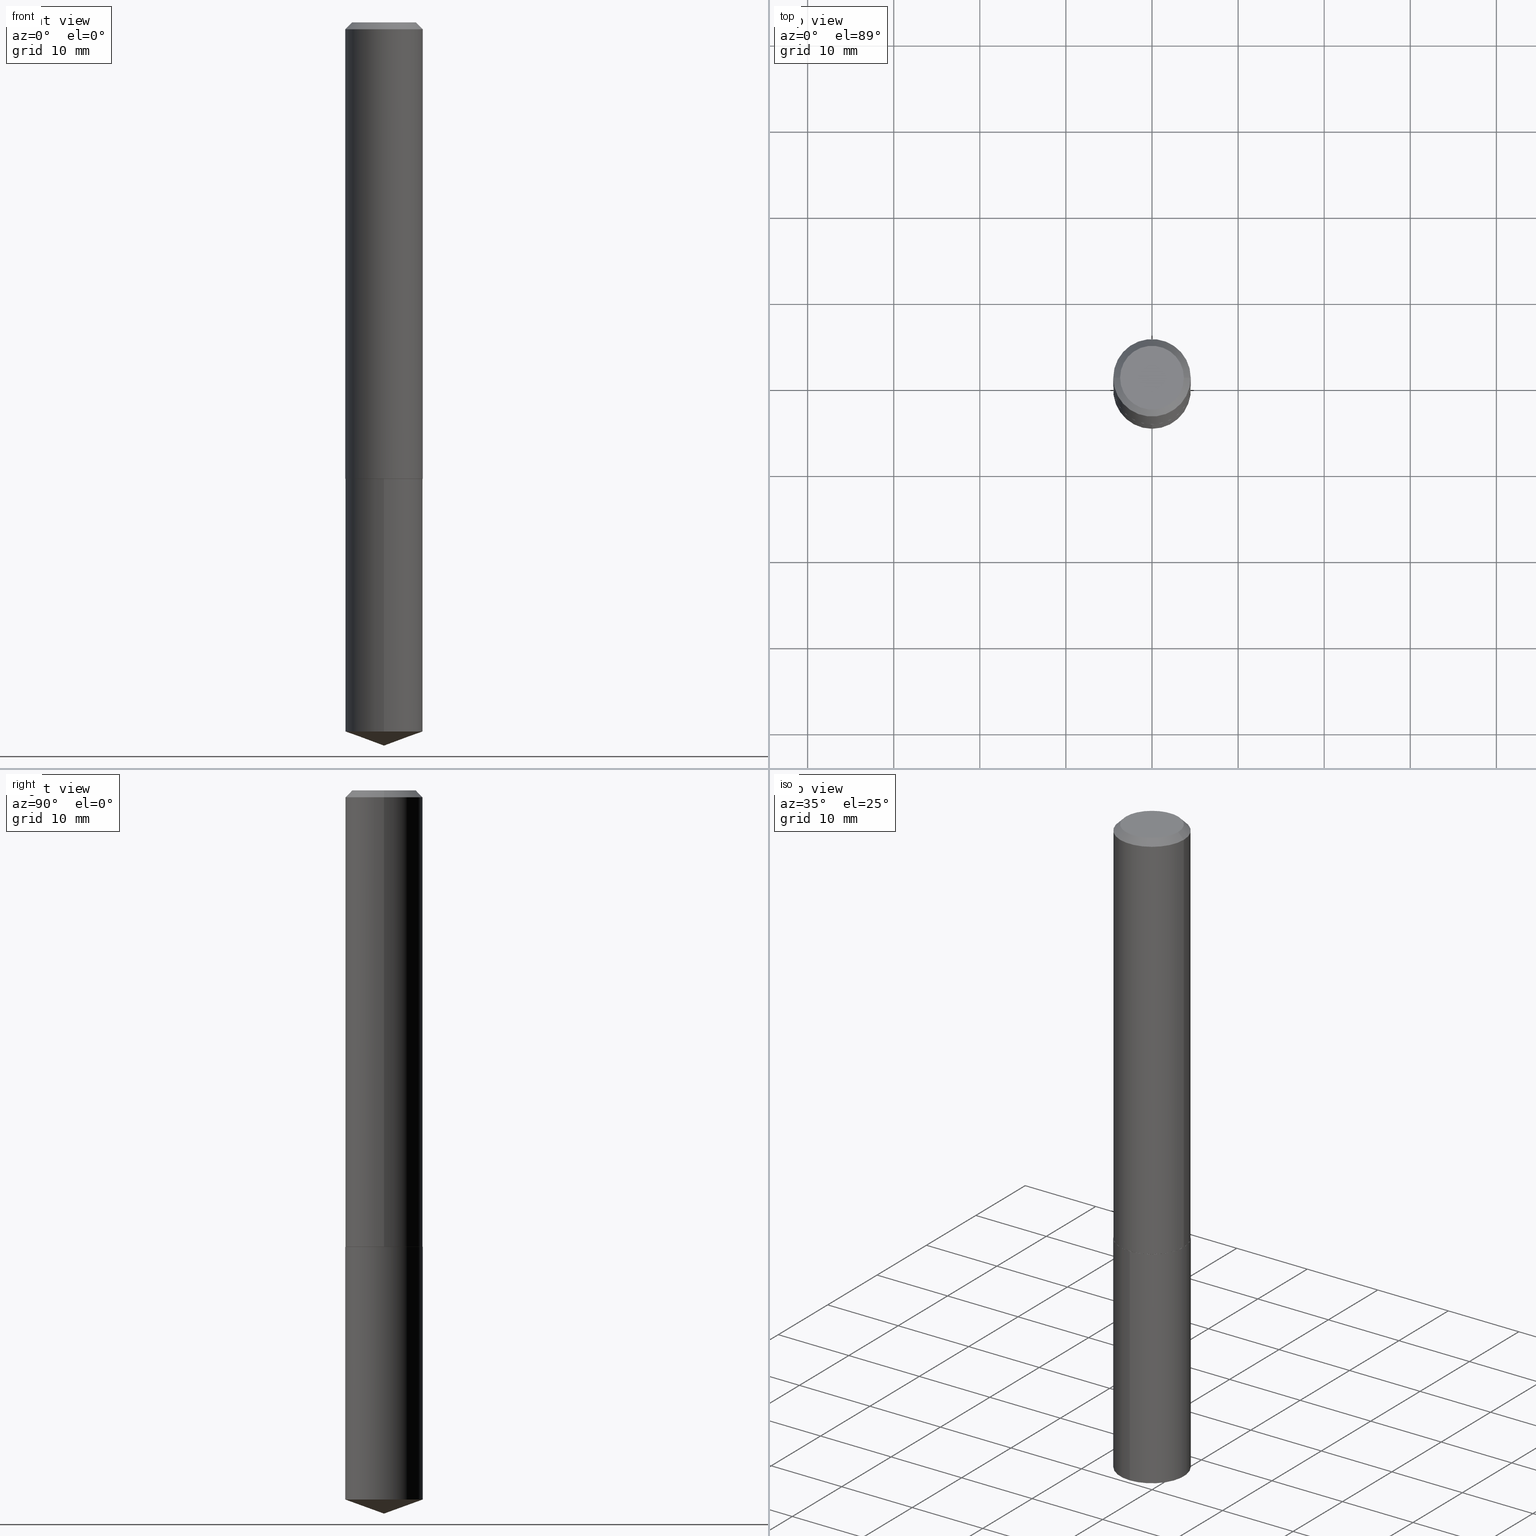
[diagram: canonical four-view strip — front | top / right | iso, engineering-drawing reading convention]
A machine part, canonical four-view strip (front | top / right | iso — engineering-drawing reading convention). The complete STEP part file that produces these views, byte-faithful:
ISO-10303-21;
HEADER;
FILE_DESCRIPTION (( 'STEP AP203' ),
    '1' );
FILE_NAME ('66031.STEP',
    '2024-04-23T12:32:38',
    ( '' ),
    ( '' ),
    'SwSTEP 2.0',
    'SolidWorks 2023',
    '' );
FILE_SCHEMA (( 'CONFIG_CONTROL_DESIGN' ));
ENDSEC;

DATA;
#1 = DIRECTION ( 'NONE',  ( 1.000000000000000000, -6.982962677686266711E-15, 4.876176775795935793E-29 ) ) ;
#2 = DATE_AND_TIME ( #208, #371 ) ;
#3 = CALENDAR_DATE ( 2024, 23, 4 ) ;
#4 = DIRECTION ( 'NONE',  ( 1.000000000000000000, -6.982962677686263555E-15, 0.000000000000000000 ) ) ;
#5 = EDGE_CURVE ( 'NONE', #71, #315, #258, .T. ) ;
#6 = DATE_TIME_ROLE ( 'classification_date' ) ;
#7 = PERSON_AND_ORGANIZATION ( #38, #155 ) ;
#8 = LOCAL_TIME ( 8, 32, 38.00000000000000000, #115 ) ;
#9 = ORIENTED_EDGE ( 'NONE', *, *, #111, .T. ) ;
#10 = ORIENTED_EDGE ( 'NONE', *, *, #361, .F. ) ;
#11 = ORIENTED_EDGE ( 'NONE', *, *, #26, .T. ) ;
#12 = DIRECTION ( 'NONE',  ( -2.445468806185136597E-29, 3.491481338843145583E-15, 1.000000000000000000 ) ) ;
#13 = EDGE_CURVE ( 'NONE', #170, #165, #106, .T. ) ;
#14 = CIRCLE ( 'NONE', #356, 0.1766500000000002790 ) ;
#15 = ORIENTED_EDGE ( 'NONE', *, *, #361, .T. ) ;
#16 = AXIS2_PLACEMENT_3D ( 'NONE', #212, #368, #117 ) ;
#17 = ORIENTED_EDGE ( 'NONE', *, *, #265, .T. ) ;
#18 = VERTEX_POINT ( 'NONE', #256 ) ;
#19 = AXIS2_PLACEMENT_3D ( 'NONE', #48, #233, #172 ) ;
#20 = CARTESIAN_POINT ( 'NONE',  ( -2.949913012720688878E-47, 4.211693974208522336E-33, 1.206277097160143859E-18 ) ) ;
#21 = DIRECTION ( 'NONE',  ( 0.7071067811865452413, -7.319954787623248157E-15, -0.7071067811865497932 ) ) ;
#22 = FACE_OUTER_BOUND ( 'NONE', #157, .T. ) ;
#23 = AXIS2_PLACEMENT_3D ( 'NONE', #30, #177, #238 ) ;
#24 = DIRECTION ( 'NONE',  ( 0.7071067811869580222, -2.468850131086556747E-15, 0.7071067811861370123 ) ) ;
#25 = FACE_OUTER_BOUND ( 'NONE', #43, .T. ) ;
#26 = EDGE_CURVE ( 'NONE', #312, #189, #273, .T. ) ;
#27 = APPROVAL_DATE_TIME ( #2, #61 ) ;
#28 = DIRECTION ( 'NONE',  ( -6.982962677686266711E-15, -1.000000000000000000, 3.475157955500737963E-15 ) ) ;
#29 = DATE_TIME_ROLE ( 'creation_date' ) ;
#30 = CARTESIAN_POINT ( 'NONE',  ( 5.102715210985906276E-29, -7.285324961630107416E-15, -2.086600000000000232 ) ) ;
#31 = CARTESIAN_POINT ( 'NONE',  ( 5.101492476582815716E-29, -7.283579220960688279E-15, -2.086100000000000954 ) ) ;
#32 = ORIENTED_EDGE ( 'NONE', *, *, #384, .T. ) ;
#33 = PERSON_AND_ORGANIZATION_ROLE ( 'design_supplier' ) ;
#34 = CIRCLE ( 'NONE', #280, 0.1459000000000000019 ) ;
#35 = LOCAL_TIME ( 8, 32, 38.00000000000000000, #328 ) ;
#36 = CYLINDRICAL_SURFACE ( 'NONE', #184, 0.1771500000000001129 ) ;
#37 = SECURITY_CLASSIFICATION_LEVEL ( 'unclassified' ) ;
#38 = PERSON ( 'UNSPECIFIED', 'UNSPECIFIED', 'UNSPECIFIED', ('UNSPECIFIED'), ('UNSPECIFIED'), ('UNSPECIFIED') ) ;
#39 = CARTESIAN_POINT ( 'NONE',  ( 5.101492476582815716E-29, -7.283579220960688279E-15, -2.086100000000000954 ) ) ;
#40 = EDGE_CURVE ( 'NONE', #222, #125, #364, .T. ) ;
#41 = EDGE_CURVE ( 'NONE', #315, #71, #121, .T. ) ;
#42 = CONICAL_SURFACE ( 'NONE', #112, 108.1684023407329107, 1.221730476396029941 ) ;
#43 = EDGE_LOOP ( 'NONE', ( #374, #346 ) ) ;
#44 = VERTEX_POINT ( 'NONE', #255 ) ;
#45 = ORIENTED_EDGE ( 'NONE', *, *, #242, .T. ) ;
#46 = APPLICATION_CONTEXT ( 'configuration controlled 3d designs of mechanical parts and assemblies' ) ;
#47 = ORIENTED_EDGE ( 'NONE', *, *, #283, .T. ) ;
#48 = CARTESIAN_POINT ( 'NONE',  ( -8.820242409055716223E-28, 1.258966992003663468E-13, 36.06297874015748306 ) ) ;
#49 = VECTOR ( 'NONE', #24, 39.37007874015748143 ) ;
#50 = EDGE_LOOP ( 'NONE', ( #126, #379, #45, #341 ) ) ;
#51 = DIRECTION ( 'NONE',  ( -2.445468806185136597E-29, 3.491481338843145583E-15, 1.000000000000000000 ) ) ;
#52 = DIRECTION ( 'NONE',  ( 2.445468806185136597E-29, -3.491481338843145583E-15, -1.000000000000000000 ) ) ;
#53 = LINE ( 'NONE', #108, #340 ) ;
#54 = FACE_OUTER_BOUND ( 'NONE', #186, .T. ) ;
#55 = CLOSED_SHELL ( 'NONE', ( #333, #325, #107, #286, #307, #293, #187, #160 ) ) ;
#56 = ORIENTED_EDGE ( 'NONE', *, *, #5, .T. ) ;
#57 = CARTESIAN_POINT ( 'NONE',  ( 0.1771500000000002240, -8.520611059312812251E-15, -2.086100000000000954 ) ) ;
#58 = EDGE_CURVE ( 'NONE', #222, #71, #53, .T. ) ;
#59 = DIRECTION ( 'NONE',  ( -0.7071067811865452413, 2.468850131082233000E-15, -0.7071067811865497932 ) ) ;
#60 = CARTESIAN_POINT ( 'NONE',  ( -0.1771500000000002240, -6.024852764561670589E-15, -2.086100000000000954 ) ) ;
#61 = APPROVAL ( #240, 'UNSPECIFIED' ) ;
#62 = CIRCLE ( 'NONE', #290, 0.1771500000000002240 ) ;
#63 = COORDINATED_UNIVERSAL_TIME_OFFSET ( 5, 0, .BEHIND. ) ;
#64 = APPROVAL_ROLE ( '' ) ;
#65 = LINE ( 'NONE', #304, #244 ) ;
#66 = COORDINATED_UNIVERSAL_TIME_OFFSET ( 5, 0, .BEHIND. ) ;
#67 = DATE_AND_TIME ( #306, #35 ) ;
#68 = SHAPE_DEFINITION_REPRESENTATION ( #138, #188 ) ;
#69 = PRODUCT ( '66031', '66031', '', ( #210 ) ) ;
#70 = CONICAL_SURFACE ( 'NONE', #206, 0.1771500000000002240, 0.7853981633980288146 ) ;
#71 = VERTEX_POINT ( 'NONE', #295 ) ;
#72 = ORIENTED_EDGE ( 'NONE', *, *, #283, .F. ) ;
#73 = ORIENTED_EDGE ( 'NONE', *, *, #83, .T. ) ;
#74 = AXIS2_PLACEMENT_3D ( 'NONE', #284, #12, #257 ) ;
#75 = ORIENTED_EDGE ( 'NONE', *, *, #111, .F. ) ;
#76 = CARTESIAN_POINT ( 'NONE',  ( 7.930082120451756435E-29, -1.132105601428266761E-14, -3.242622672999742495 ) ) ;
#77 = ADVANCED_FACE ( 'NONE', ( #143 ), #270, .F. ) ;
#78 = CARTESIAN_POINT ( 'NONE',  ( 5.102715210985907397E-29, -7.285324961630108994E-15, -2.086600000000000676 ) ) ;
#79 = CARTESIAN_POINT ( 'NONE',  ( 0.000000000000000000, 0.000000000000000000, 0.000000000000000000 ) ) ;
#80 = ORIENTED_EDGE ( 'NONE', *, *, #214, .T. ) ;
#81 = LOCAL_TIME ( 8, 32, 38.00000000000000000, #363 ) ;
#82 = DIRECTION ( 'NONE',  ( 1.000000000000000000, -6.982962677686263555E-15, 0.000000000000000000 ) ) ;
#83 = EDGE_CURVE ( 'NONE', #18, #44, #14, .T. ) ;
#84 = CYLINDRICAL_SURFACE ( 'NONE', #86, 0.1771500000000000019 ) ;
#85 = DIRECTION ( 'NONE',  ( -2.445771156139322232E-29, 3.491048356500061313E-15, 1.000000000000000000 ) ) ;
#86 = AXIS2_PLACEMENT_3D ( 'NONE', #327, #101, #200 ) ;
#87 = CONICAL_SURFACE ( 'NONE', #219, 0.1771500000000002240, 0.7853981633980288146 ) ;
#88 = CALENDAR_DATE ( 2024, 23, 4 ) ;
#89 = APPROVAL_DATE_TIME ( #120, #309 ) ;
#90 = APPLICATION_PROTOCOL_DEFINITION ( 'international standard', 'config_control_design', 1994, #46 ) ;
#91 = AXIS2_PLACEMENT_3D ( 'NONE', #127, #51, #185 ) ;
#92 = CC_DESIGN_APPROVAL ( #61, ( #254 ) ) ;
#93 = ORIENTED_EDGE ( 'NONE', *, *, #265, .F. ) ;
#94 = EDGE_LOOP ( 'NONE', ( #250, #159 ) ) ;
#95 = AXIS2_PLACEMENT_3D ( 'NONE', #78, #264, #359 ) ;
#96 = CIRCLE ( 'NONE', #23, 0.1766500000000002790 ) ;
#97 = VERTEX_POINT ( 'NONE', #263 ) ;
#98 = EDGE_LOOP ( 'NONE', ( #314, #347, #56, #99 ) ) ;
#99 = ORIENTED_EDGE ( 'NONE', *, *, #242, .F. ) ;
#100 = VERTEX_POINT ( 'NONE', #104 ) ;
#101 = DIRECTION ( 'NONE',  ( -2.445771156139322232E-29, 3.491048356500061313E-15, 1.000000000000000000 ) ) ;
#102 = DIRECTION ( 'NONE',  ( 2.445771156139321391E-29, -3.491048356500061707E-15, -1.000000000000000000 ) ) ;
#103 = CARTESIAN_POINT ( 'NONE',  ( -1.237031838352071118E-15, -0.1771500000000073016, -2.086600000000000232 ) ) ;
#104 = CARTESIAN_POINT ( 'NONE',  ( 8.088409790468352697E-29, -1.154524601978135254E-14, -3.307100000000000151 ) ) ;
#105 = DIRECTION ( 'NONE',  ( -1.000000000000000000, 6.982962677686266711E-15, 0.000000000000000000 ) ) ;
#106 = CIRCLE ( 'NONE', #230, 0.1771500000000000019 ) ;
#107 = ADVANCED_FACE ( 'NONE', ( #369 ), #70, .T. ) ;
#108 = CARTESIAN_POINT ( 'NONE',  ( 0.1771500000000000019, -1.324446012144076001E-15, -0.03125000000000021511 ) ) ;
#109 = LINE ( 'NONE', #236, #154 ) ;
#110 = PERSON_AND_ORGANIZATION ( #38, #155 ) ;
#111 = EDGE_CURVE ( 'NONE', #18, #249, #152, .T. ) ;
#112 = AXIS2_PLACEMENT_3D ( 'NONE', #229, #85, #28 ) ;
#113 = CC_DESIGN_APPROVAL ( #272, ( #365 ) ) ;
#114 =( NAMED_UNIT ( * ) SI_UNIT ( $, .STERADIAN. ) SOLID_ANGLE_UNIT ( ) );
#115 = COORDINATED_UNIVERSAL_TIME_OFFSET ( 5, 0, .BEHIND. ) ;
#116 = ORIENTED_EDGE ( 'NONE', *, *, #214, .F. ) ;
#117 = DIRECTION ( 'NONE',  ( 1.000000000000000000, 0.000000000000000000, 0.000000000000000000 ) ) ;
#118 = DIRECTION ( 'NONE',  ( -2.445468806185136597E-29, 3.491481338843145583E-15, 1.000000000000000000 ) ) ;
#119 = ORIENTED_EDGE ( 'NONE', *, *, #164, .F. ) ;
#120 = DATE_AND_TIME ( #332, #174 ) ;
#121 = CIRCLE ( 'NONE', #74, 0.1771500000000000019 ) ;
#122 = VECTOR ( 'NONE', #319, 39.37007874015747433 ) ;
#123 = DIRECTION ( 'NONE',  ( -2.445468806185136597E-29, 3.491481338843145583E-15, 1.000000000000000000 ) ) ;
#124 = EDGE_LOOP ( 'NONE', ( #75, #73, #190, #288 ) ) ;
#125 = VERTEX_POINT ( 'NONE', #311 ) ;
#126 = ORIENTED_EDGE ( 'NONE', *, *, #58, .F. ) ;
#127 = CARTESIAN_POINT ( 'NONE',  ( -2.949913012720688878E-47, 4.211693974208522336E-33, 1.206277097160143859E-18 ) ) ;
#128 = AXIS2_PLACEMENT_3D ( 'NONE', #389, #383, #296 ) ;
#129 = AXIS2_PLACEMENT_3D ( 'NONE', #79, #118, #209 ) ;
#130 = ORIENTED_EDGE ( 'NONE', *, *, #216, .F. ) ;
#131 = ORIENTED_EDGE ( 'NONE', *, *, #281, .T. ) ;
#132 = DIRECTION ( 'NONE',  ( -2.445771156139322232E-29, 3.491048356500061313E-15, 1.000000000000000000 ) ) ;
#133 = LINE ( 'NONE', #358, #267 ) ;
#134 = CC_DESIGN_PERSON_AND_ORGANIZATION_ASSIGNMENT ( #180, #33, ( #254 ) ) ;
#135 = AXIS2_PLACEMENT_3D ( 'NONE', #137, #102, #228 ) ;
#136 = AXIS2_PLACEMENT_3D ( 'NONE', #167, #223, #350 ) ;
#137 = CARTESIAN_POINT ( 'NONE',  ( 5.102715210985907397E-29, -7.285324961630108994E-15, -2.086600000000000676 ) ) ;
#138 = PRODUCT_DEFINITION_SHAPE ( 'NONE', 'NONE',  #145 ) ;
#139 = PLANE ( 'NONE',  #224 ) ;
#140 = DIRECTION ( 'NONE',  ( 1.000000000000000000, -6.982962677686264344E-15, 0.000000000000000000 ) ) ;
#141 = CC_DESIGN_DATE_AND_TIME_ASSIGNMENT ( #275, #6, ( #365 ) ) ;
#142 = DIRECTION ( 'NONE',  ( 2.445468806185136597E-29, -3.491481338843145583E-15, -1.000000000000000000 ) ) ;
#143 = FACE_OUTER_BOUND ( 'NONE', #279, .T. ) ;
#144 = PERSON_AND_ORGANIZATION ( #38, #155 ) ;
#145 = PRODUCT_DEFINITION ( 'UNKNOWN', '', #254, #251 ) ;
#146 = FACE_OUTER_BOUND ( 'NONE', #345, .T. ) ;
#147 = AXIS2_PLACEMENT_3D ( 'NONE', #234, #360, #225 ) ;
#148 =( NAMED_UNIT ( * ) PLANE_ANGLE_UNIT ( ) SI_UNIT ( $, .RADIAN. ) );
#149 = ORIENTED_EDGE ( 'NONE', *, *, #384, .F. ) ;
#150 = APPLICATION_PROTOCOL_DEFINITION ( 'international standard', 'config_control_design', 1994, #217 ) ;
#151 = CARTESIAN_POINT ( 'NONE',  ( 0.000000000000000000, 0.000000000000000000, 0.000000000000000000 ) ) ;
#152 = LINE ( 'NONE', #370, #348 ) ;
#153 = EDGE_LOOP ( 'NONE', ( #149, #47, #247 ) ) ;
#154 = VECTOR ( 'NONE', #354, 39.37007874015748854 ) ;
#155 = ORGANIZATION ( 'UNSPECIFIED', 'UNSPECIFIED', '' ) ;
#156 = FACE_OUTER_BOUND ( 'NONE', #376, .T. ) ;
#157 = EDGE_LOOP ( 'NONE', ( #344, #11, #15, #285 ) ) ;
#158 = ADVANCED_FACE ( 'NONE', ( #156 ), #168, .T. ) ;
#159 = ORIENTED_EDGE ( 'NONE', *, *, #83, .F. ) ;
#160 = ADVANCED_FACE ( 'NONE', ( #25 ), #139, .F. ) ;
#161 = DIRECTION ( 'NONE',  ( -2.445771156139322232E-29, 3.491048356500061313E-15, 1.000000000000000000 ) ) ;
#162 = EDGE_LOOP ( 'NONE', ( #17, #252, #119, #10 ) ) ;
#163 = CIRCLE ( 'NONE', #387, 0.1771500000000002240 ) ;
#164 = EDGE_CURVE ( 'NONE', #165, #170, #218, .T. ) ;
#165 = VERTEX_POINT ( 'NONE', #103 ) ;
#166 = MANIFOLD_SOLID_BREP ( 'Body-Move/Copy2[1]', #173 ) ;
#167 = CARTESIAN_POINT ( 'NONE',  ( 7.642090019328603538E-31, -1.091087918388490390E-16, -0.03125000000000021511 ) ) ;
#168 = CONICAL_SURFACE ( 'NONE', #19, 108.1684023407329107, 1.221730476396029941 ) ;
#169 = CYLINDRICAL_SURFACE ( 'NONE', #129, 0.1771500000000001129 ) ;
#170 = VERTEX_POINT ( 'NONE', #266 ) ;
#171 = FACE_OUTER_BOUND ( 'NONE', #153, .T. ) ;
#172 = DIRECTION ( 'NONE',  ( -6.982962677686266711E-15, -1.000000000000000000, 3.475157955500737963E-15 ) ) ;
#173 = CLOSED_SHELL ( 'NONE', ( #377, #158, #241, #277, #77 ) ) ;
#174 = LOCAL_TIME ( 8, 32, 38.00000000000000000, #66 ) ;
#175 = PERSON_AND_ORGANIZATION ( #38, #155 ) ;
#176 = CARTESIAN_POINT ( 'NONE',  ( 0.1771500000000001129, -1.237031838352122986E-15, 8.638147158322505565E-30 ) ) ;
#177 = DIRECTION ( 'NONE',  ( -2.445468806185136597E-29, 3.491481338843145583E-15, 1.000000000000000000 ) ) ;
#178 = DIMENSIONAL_EXPONENTS ( 1.000000000000000000, 0.000000000000000000, 0.000000000000000000, 0.000000000000000000, 0.000000000000000000, 0.000000000000000000, 0.000000000000000000 ) ;
#179 = PERSON_AND_ORGANIZATION ( #38, #155 ) ;
#180 = PERSON_AND_ORGANIZATION ( #38, #155 ) ;
#181 = FACE_OUTER_BOUND ( 'NONE', #124, .T. ) ;
#182 = ORIENTED_EDGE ( 'NONE', *, *, #302, .T. ) ;
#183 = APPROVAL_DATE_TIME ( #248, #272 ) ;
#184 = AXIS2_PLACEMENT_3D ( 'NONE', #151, #123, #1 ) ;
#185 = DIRECTION ( 'NONE',  ( 1.000000000000000000, -6.982962677686266711E-15, 4.876233736924995224E-29 ) ) ;
#186 = EDGE_LOOP ( 'NONE', ( #343, #131, #80, #221 ) ) ;
#187 = ADVANCED_FACE ( 'NONE', ( #386 ), #375, .T. ) ;
#188 = ADVANCED_BREP_SHAPE_REPRESENTATION ( '66031', ( #166, #299, #16 ), #313 ) ;
#189 = VERTEX_POINT ( 'NONE', #262 ) ;
#190 = ORIENTED_EDGE ( 'NONE', *, *, #338, .T. ) ;
#191 = APPROVAL_PERSON_ORGANIZATION ( #144, #272, #237 ) ;
#192 = CC_DESIGN_PERSON_AND_ORGANIZATION_ASSIGNMENT ( #179, #278, ( #145 ) ) ;
#193 = DIRECTION ( 'NONE',  ( -6.982962677686265922E-15, -1.000000000000000000, 3.084220145260246224E-15 ) ) ;
#194 = CARTESIAN_POINT ( 'NONE',  ( 8.088420854674045306E-29, -1.154524601978135254E-14, -3.307100000000000151 ) ) ;
#195 = PRODUCT_RELATED_PRODUCT_CATEGORY ( 'detail', '', ( #69 ) ) ;
#196 = DIRECTION ( 'NONE',  ( 1.000000000000000000, -6.982962677686266711E-15, 4.876233736924995224E-29 ) ) ;
#197 = DIRECTION ( 'NONE',  ( -2.445468806185136597E-29, 3.491481338843145583E-15, 1.000000000000000000 ) ) ;
#198 = CARTESIAN_POINT ( 'NONE',  ( -1.237031838352071118E-15, -0.1771500000000073016, -2.086600000000000232 ) ) ;
#199 = AXIS2_PLACEMENT_3D ( 'NONE', #324, #142, #105 ) ;
#200 = DIRECTION ( 'NONE',  ( -6.982962677686265922E-15, -1.000000000000000000, 3.084220145260246224E-15 ) ) ;
#201 = CC_DESIGN_APPROVAL ( #309, ( #145 ) ) ;
#202 = CARTESIAN_POINT ( 'NONE',  ( 0.1459000000000000019, -1.162696335009471270E-15, 1.206277097167771312E-18 ) ) ;
#203 = FACE_OUTER_BOUND ( 'NONE', #98, .T. ) ;
#204 = CARTESIAN_POINT ( 'NONE',  ( -0.1771500000000000019, 1.127923046513273096E-15, -0.03125000000000021511 ) ) ;
#205 = FACE_OUTER_BOUND ( 'NONE', #94, .T. ) ;
#206 = AXIS2_PLACEMENT_3D ( 'NONE', #31, #336, #276 ) ;
#207 = CC_DESIGN_DATE_AND_TIME_ASSIGNMENT ( #67, #29, ( #145 ) ) ;
#208 = CALENDAR_DATE ( 2024, 23, 4 ) ;
#209 = DIRECTION ( 'NONE',  ( 1.000000000000000000, -6.982962677686266711E-15, 4.876176775795935793E-29 ) ) ;
#210 = MECHANICAL_CONTEXT ( 'NONE', #46, 'mechanical' ) ;
#211 = AXIS2_PLACEMENT_3D ( 'NONE', #381, #226, #320 ) ;
#212 = CARTESIAN_POINT ( 'NONE',  ( 0.000000000000000000, 0.000000000000000000, 0.000000000000000000 ) ) ;
#213 = DIRECTION ( 'NONE',  ( -0.7071067811869580222, 7.493145998871837219E-15, 0.7071067811861370123 ) ) ;
#214 = EDGE_CURVE ( 'NONE', #97, #71, #362, .T. ) ;
#215 = ORIENTED_EDGE ( 'NONE', *, *, #373, .T. ) ;
#216 = EDGE_CURVE ( 'NONE', #97, #249, #62, .T. ) ;
#217 = APPLICATION_CONTEXT ( 'configuration controlled 3d designs of mechanical parts and assemblies' ) ;
#218 = CIRCLE ( 'NONE', #95, 0.1771500000000000019 ) ;
#219 = AXIS2_PLACEMENT_3D ( 'NONE', #39, #367, #4 ) ;
#220 = DIRECTION ( 'NONE',  ( -6.982962677686265922E-15, -1.000000000000000000, 3.084220145260246224E-15 ) ) ;
#221 = ORIENTED_EDGE ( 'NONE', *, *, #41, .F. ) ;
#222 = VERTEX_POINT ( 'NONE', #202 ) ;
#223 = DIRECTION ( 'NONE',  ( -2.445468806185136597E-29, 3.491481338843145583E-15, 1.000000000000000000 ) ) ;
#224 = AXIS2_PLACEMENT_3D ( 'NONE', #292, #294, #352 ) ;
#225 = DIRECTION ( 'NONE',  ( -6.982962677686265922E-15, -1.000000000000000000, 3.084220145260246224E-15 ) ) ;
#226 = DIRECTION ( 'NONE',  ( -2.438088387897960049E-29, 3.491481338843145188E-15, 1.000000000000000000 ) ) ;
#227 = EDGE_CURVE ( 'NONE', #125, #222, #34, .T. ) ;
#228 = DIRECTION ( 'NONE',  ( 6.982962677686265922E-15, 1.000000000000000000, -3.491048356500061707E-15 ) ) ;
#229 = CARTESIAN_POINT ( 'NONE',  ( -8.820242409055716223E-28, 1.258966992003663468E-13, 36.06297874015748306 ) ) ;
#230 = AXIS2_PLACEMENT_3D ( 'NONE', #282, #132, #220 ) ;
#231 = DIRECTION ( 'NONE',  ( -2.445468806185136877E-29, 3.491481338843145188E-15, 1.000000000000000000 ) ) ;
#232 = DIRECTION ( 'NONE',  ( -2.445771156139322512E-29, 3.491048356500061707E-15, 1.000000000000000000 ) ) ;
#233 = DIRECTION ( 'NONE',  ( -2.445771156139322232E-29, 3.491048356500061313E-15, 1.000000000000000000 ) ) ;
#234 = CARTESIAN_POINT ( 'NONE',  ( 5.102715210985907397E-29, -7.285324961630108994E-15, -2.086600000000000676 ) ) ;
#235 = CC_DESIGN_PERSON_AND_ORGANIZATION_ASSIGNMENT ( #366, #331, ( #254 ) ) ;
#236 = CARTESIAN_POINT ( 'NONE',  ( 8.087148023639544931E-29, -1.154705294169551217E-14, -3.307100000000000151 ) ) ;
#237 = APPROVAL_ROLE ( '' ) ;
#238 = DIRECTION ( 'NONE',  ( 1.000000000000000000, -6.982962677686264344E-15, 0.000000000000000000 ) ) ;
#239 = AXIS2_PLACEMENT_3D ( 'NONE', #76, #161, #193 ) ;
#240 = APPROVAL_STATUS ( 'not_yet_approved' ) ;
#241 = ADVANCED_FACE ( 'NONE', ( #171 ), #42, .T. ) ;
#242 = EDGE_CURVE ( 'NONE', #125, #315, #260, .T. ) ;
#243 = PERSON_AND_ORGANIZATION ( #38, #155 ) ;
#244 = VECTOR ( 'NONE', #310, 39.37007874015748143 ) ;
#245 = APPROVAL_STATUS ( 'not_yet_approved' ) ;
#246 = CC_DESIGN_PERSON_AND_ORGANIZATION_ASSIGNMENT ( #7, #274, ( #365 ) ) ;
#247 = ORIENTED_EDGE ( 'NONE', *, *, #26, .F. ) ;
#248 = DATE_AND_TIME ( #88, #81 ) ;
#249 = VERTEX_POINT ( 'NONE', #60 ) ;
#250 = ORIENTED_EDGE ( 'NONE', *, *, #302, .F. ) ;
#251 = DESIGN_CONTEXT ( 'detailed design', #217, 'design' ) ;
#252 = ORIENTED_EDGE ( 'NONE', *, *, #316, .T. ) ;
#253 = VECTOR ( 'NONE', #59, 39.37007874015748143 ) ;
#254 = PRODUCT_DEFINITION_FORMATION_WITH_SPECIFIED_SOURCE ( 'ANY', '', #69, .NOT_KNOWN. ) ;
#255 = CARTESIAN_POINT ( 'NONE',  ( 0.1766500000000002790, -8.518865318643388381E-15, -2.086600000000000232 ) ) ;
#256 = CARTESIAN_POINT ( 'NONE',  ( -0.1766500000000002790, -6.027501991735779424E-15, -2.086600000000000232 ) ) ;
#257 = DIRECTION ( 'NONE',  ( 1.000000000000000000, -6.982962677686266711E-15, 0.000000000000000000 ) ) ;
#258 = CIRCLE ( 'NONE', #136, 0.1771500000000000019 ) ;
#259 = DIRECTION ( 'NONE',  ( -2.445468806185136877E-29, 3.491481338843145188E-15, 1.000000000000000000 ) ) ;
#260 = LINE ( 'NONE', #204, #253 ) ;
#261 = CARTESIAN_POINT ( 'NONE',  ( 7.642090019328603538E-31, -1.091087918388490390E-16, -0.03125000000000021511 ) ) ;
#262 = CARTESIAN_POINT ( 'NONE',  ( -1.237031838352043113E-15, -0.1771500000000113817, -3.242622672999742051 ) ) ;
#263 = CARTESIAN_POINT ( 'NONE',  ( 0.1771500000000002240, -8.520611059312812251E-15, -2.086100000000000954 ) ) ;
#264 = DIRECTION ( 'NONE',  ( -2.445771156139322232E-29, 3.491048356500061313E-15, 1.000000000000000000 ) ) ;
#265 = EDGE_CURVE ( 'NONE', #189, #312, #305, .T. ) ;
#266 = CARTESIAN_POINT ( 'NONE',  ( 1.258726456399096971E-15, 0.1771499999999927299, -2.086600000000001121 ) ) ;
#267 = VECTOR ( 'NONE', #259, 39.37007874015748143 ) ;
#268 = CC_DESIGN_PERSON_AND_ORGANIZATION_ASSIGNMENT ( #175, #303, ( #69 ) ) ;
#269 = DIRECTION ( 'NONE',  ( -2.445468806185136597E-29, 3.491481338843145583E-15, 1.000000000000000000 ) ) ;
#270 = PLANE ( 'NONE',  #135 ) ;
#271 = APPROVAL_STATUS ( 'not_yet_approved' ) ;
#272 = APPROVAL ( #271, 'UNSPECIFIED' ) ;
#273 = CIRCLE ( 'NONE', #239, 0.1771500000000000019 ) ;
#274 = PERSON_AND_ORGANIZATION_ROLE ( 'classification_officer' ) ;
#275 = DATE_AND_TIME ( #3, #8 ) ;
#276 = DIRECTION ( 'NONE',  ( 1.000000000000000000, -6.982962677686263555E-15, 0.000000000000000000 ) ) ;
#277 = ADVANCED_FACE ( 'NONE', ( #22 ), #84, .T. ) ;
#278 = PERSON_AND_ORGANIZATION_ROLE ( 'creator' ) ;
#279 = EDGE_LOOP ( 'NONE', ( #339, #318 ) ) ;
#280 = AXIS2_PLACEMENT_3D ( 'NONE', #20, #326, #196 ) ;
#281 = EDGE_CURVE ( 'NONE', #249, #97, #163, .T. ) ;
#282 = CARTESIAN_POINT ( 'NONE',  ( 5.102715210985907397E-29, -7.285324961630108994E-15, -2.086600000000000676 ) ) ;
#283 = EDGE_CURVE ( 'NONE', #100, #189, #109, .T. ) ;
#284 = CARTESIAN_POINT ( 'NONE',  ( 7.642090019328603538E-31, -1.091087918388490390E-16, -0.03125000000000021511 ) ) ;
#285 = ORIENTED_EDGE ( 'NONE', *, *, #13, .F. ) ;
#286 = ADVANCED_FACE ( 'NONE', ( #205 ), #329, .F. ) ;
#287 = APPROVAL_PERSON_ORGANIZATION ( #243, #61, #300 ) ;
#288 = ORIENTED_EDGE ( 'NONE', *, *, #281, .F. ) ;
#289 = EDGE_LOOP ( 'NONE', ( #182, #9, #130, #317 ) ) ;
#290 = AXIS2_PLACEMENT_3D ( 'NONE', #357, #301, #82 ) ;
#291 =( LENGTH_UNIT ( ) NAMED_UNIT ( * ) SI_UNIT ( $, .METRE. ) );
#292 = CARTESIAN_POINT ( 'NONE',  ( -1.474956506360344439E-47, 2.105846987104261168E-33, 6.031385485800719294E-19 ) ) ;
#293 = ADVANCED_FACE ( 'NONE', ( #54 ), #169, .T. ) ;
#294 = DIRECTION ( 'NONE',  ( 2.438088387897960049E-29, -3.491481338843145188E-15, -1.000000000000000000 ) ) ;
#295 = CARTESIAN_POINT ( 'NONE',  ( 0.1771500000000000019, -1.346140630190971297E-15, -0.03125000000000021511 ) ) ;
#296 = DIRECTION ( 'NONE',  ( -6.982962677686265922E-15, -1.000000000000000000, 3.084220145260246224E-15 ) ) ;
#297 = CARTESIAN_POINT ( 'NONE',  ( 5.101492476582815716E-29, -7.283579220960688279E-15, -2.086100000000000954 ) ) ;
#298 = AXIS2_PLACEMENT_3D ( 'NONE', #261, #52, #388 ) ;
#299 = MANIFOLD_SOLID_BREP ( 'Body-Move/Copy2[2]', #55 ) ;
#300 = APPROVAL_ROLE ( '' ) ;
#301 = DIRECTION ( 'NONE',  ( -2.445468806185136597E-29, 3.491481338843145583E-15, 1.000000000000000000 ) ) ;
#302 = EDGE_CURVE ( 'NONE', #44, #18, #96, .T. ) ;
#303 = PERSON_AND_ORGANIZATION_ROLE ( 'design_owner' ) ;
#304 = CARTESIAN_POINT ( 'NONE',  ( 1.258726456399068374E-15, 0.1771499999999927299, -2.086600000000001121 ) ) ;
#305 = CIRCLE ( 'NONE', #128, 0.1771500000000000019 ) ;
#306 = CALENDAR_DATE ( 2024, 23, 4 ) ;
#307 = ADVANCED_FACE ( 'NONE', ( #181 ), #87, .T. ) ;
#308 = LENGTH_MEASURE_WITH_UNIT ( LENGTH_MEASURE( 0.02539999999999999897 ), #291 );
#309 = APPROVAL ( #245, 'UNSPECIFIED' ) ;
#310 = DIRECTION ( 'NONE',  ( -2.445771156139322512E-29, 3.491048356500061707E-15, 1.000000000000000000 ) ) ;
#311 = CARTESIAN_POINT ( 'NONE',  ( -0.1459000000000000019, 1.073368650593849729E-15, 1.206277097152828214E-18 ) ) ;
#312 = VERTEX_POINT ( 'NONE', #372 ) ;
#313 =( GEOMETRIC_REPRESENTATION_CONTEXT ( 3 ) GLOBAL_UNCERTAINTY_ASSIGNED_CONTEXT ( ( #355 ) ) GLOBAL_UNIT_ASSIGNED_CONTEXT ( ( #330, #148, #114 ) ) REPRESENTATION_CONTEXT ( 'NONE', 'WORKASPACE' ) );
#314 = ORIENTED_EDGE ( 'NONE', *, *, #40, .F. ) ;
#315 = VERTEX_POINT ( 'NONE', #334 ) ;
#316 = EDGE_CURVE ( 'NONE', #312, #170, #65, .T. ) ;
#317 = ORIENTED_EDGE ( 'NONE', *, *, #338, .F. ) ;
#318 = ORIENTED_EDGE ( 'NONE', *, *, #13, .T. ) ;
#319 = DIRECTION ( 'NONE',  ( 6.676917655467966551E-15, 0.9396926207859094271, 0.3420201433256662149 ) ) ;
#320 = DIRECTION ( 'NONE',  ( 1.000000000000000000, -6.982962677686265922E-15, 4.876176775795935793E-29 ) ) ;
#321 = ORIENTED_EDGE ( 'NONE', *, *, #5, .F. ) ;
#322 = VECTOR ( 'NONE', #232, 39.37007874015748143 ) ;
#323 = LINE ( 'NONE', #198, #322 ) ;
#324 = CARTESIAN_POINT ( 'NONE',  ( 7.642090019328603538E-31, -1.091087918388490390E-16, -0.03125000000000021511 ) ) ;
#325 = ADVANCED_FACE ( 'NONE', ( #146 ), #36, .T. ) ;
#326 = DIRECTION ( 'NONE',  ( -2.445468806185136597E-29, 3.491481338843145583E-15, 1.000000000000000000 ) ) ;
#327 = CARTESIAN_POINT ( 'NONE',  ( 5.102715210985907397E-29, -7.285324961630108994E-15, -2.086600000000000676 ) ) ;
#328 = COORDINATED_UNIVERSAL_TIME_OFFSET ( 5, 0, .BEHIND. ) ;
#329 = PLANE ( 'NONE',  #211 ) ;
#330 =( CONVERSION_BASED_UNIT ( 'INCH', #308 ) LENGTH_UNIT ( ) NAMED_UNIT ( #178 ) );
#331 = PERSON_AND_ORGANIZATION_ROLE ( 'creator' ) ;
#332 = CALENDAR_DATE ( 2024, 23, 4 ) ;
#333 = ADVANCED_FACE ( 'NONE', ( #203 ), #337, .T. ) ;
#334 = CARTESIAN_POINT ( 'NONE',  ( -0.1771500000000000019, -2.437617550000750605E-15, -0.03125000000000021511 ) ) ;
#335 = VECTOR ( 'NONE', #231, 39.37007874015748143 ) ;
#336 = DIRECTION ( 'NONE',  ( -2.445468806185136597E-29, 3.491481338843145583E-15, 1.000000000000000000 ) ) ;
#337 = CONICAL_SURFACE ( 'NONE', #298, 0.1771500000000000019, 0.7853981633974450594 ) ;
#338 = EDGE_CURVE ( 'NONE', #44, #97, #385, .T. ) ;
#339 = ORIENTED_EDGE ( 'NONE', *, *, #164, .T. ) ;
#340 = VECTOR ( 'NONE', #21, 39.37007874015748143 ) ;
#341 = ORIENTED_EDGE ( 'NONE', *, *, #41, .T. ) ;
#342 = ORIENTED_EDGE ( 'NONE', *, *, #216, .T. ) ;
#343 = ORIENTED_EDGE ( 'NONE', *, *, #373, .F. ) ;
#344 = ORIENTED_EDGE ( 'NONE', *, *, #316, .F. ) ;
#345 = EDGE_LOOP ( 'NONE', ( #342, #215, #321, #116 ) ) ;
#346 = ORIENTED_EDGE ( 'NONE', *, *, #40, .T. ) ;
#347 = ORIENTED_EDGE ( 'NONE', *, *, #58, .T. ) ;
#348 = VECTOR ( 'NONE', #213, 39.37007874015748143 ) ;
#349 = CC_DESIGN_SECURITY_CLASSIFICATION ( #365, ( #254 ) ) ;
#350 = DIRECTION ( 'NONE',  ( 1.000000000000000000, -6.982962677686266711E-15, 0.000000000000000000 ) ) ;
#351 = LINE ( 'NONE', #194, #122 ) ;
#352 = DIRECTION ( 'NONE',  ( -1.000000000000000000, 6.982962677686265922E-15, -4.876176775795935793E-29 ) ) ;
#353 = CARTESIAN_POINT ( 'NONE',  ( 5.102715210985906276E-29, -7.285324961630107416E-15, -2.086600000000000232 ) ) ;
#354 = DIRECTION ( 'NONE',  ( -6.561838499445199274E-15, -0.9396926207859068736, 0.3420201433256727097 ) ) ;
#355 = UNCERTAINTY_MEASURE_WITH_UNIT (LENGTH_MEASURE( 1.000000000000000082E-05 ), #330, 'distance_accuracy_value', 'NONE');
#356 = AXIS2_PLACEMENT_3D ( 'NONE', #353, #197, #140 ) ;
#357 = CARTESIAN_POINT ( 'NONE',  ( 5.101492476582815716E-29, -7.283579220960688279E-15, -2.086100000000000954 ) ) ;
#358 = CARTESIAN_POINT ( 'NONE',  ( -0.1771500000000001129, 1.258726456399018282E-15, -8.713893512386570931E-30 ) ) ;
#359 = DIRECTION ( 'NONE',  ( -6.982962677686265922E-15, -1.000000000000000000, 3.084220145260246224E-15 ) ) ;
#360 = DIRECTION ( 'NONE',  ( -2.445771156139322232E-29, 3.491048356500061313E-15, 1.000000000000000000 ) ) ;
#361 = EDGE_CURVE ( 'NONE', #189, #165, #323, .T. ) ;
#362 = LINE ( 'NONE', #176, #335 ) ;
#363 = COORDINATED_UNIVERSAL_TIME_OFFSET ( 5, 0, .BEHIND. ) ;
#364 = CIRCLE ( 'NONE', #91, 0.1459000000000000019 ) ;
#365 = SECURITY_CLASSIFICATION ( '', '', #37 ) ;
#366 = PERSON_AND_ORGANIZATION ( #38, #155 ) ;
#367 = DIRECTION ( 'NONE',  ( -2.445468806185136597E-29, 3.491481338843145583E-15, 1.000000000000000000 ) ) ;
#368 = DIRECTION ( 'NONE',  ( 0.000000000000000000, 0.000000000000000000, 1.000000000000000000 ) ) ;
#369 = FACE_OUTER_BOUND ( 'NONE', #289, .T. ) ;
#370 = CARTESIAN_POINT ( 'NONE',  ( -0.1771500000000002240, -6.024852764561670589E-15, -2.086100000000000954 ) ) ;
#371 = LOCAL_TIME ( 8, 32, 38.00000000000000000, #63 ) ;
#372 = CARTESIAN_POINT ( 'NONE',  ( 1.258726456399097168E-15, 0.1771499999999887054, -3.242622672999742939 ) ) ;
#373 = EDGE_CURVE ( 'NONE', #249, #315, #133, .T. ) ;
#374 = ORIENTED_EDGE ( 'NONE', *, *, #227, .T. ) ;
#375 = CONICAL_SURFACE ( 'NONE', #199, 0.1771500000000000019, 0.7853981633974450594 ) ;
#376 = EDGE_LOOP ( 'NONE', ( #72, #32, #93 ) ) ;
#377 = ADVANCED_FACE ( 'NONE', ( #380 ), #382, .T. ) ;
#378 = APPROVAL_PERSON_ORGANIZATION ( #110, #309, #64 ) ;
#379 = ORIENTED_EDGE ( 'NONE', *, *, #227, .F. ) ;
#380 = FACE_OUTER_BOUND ( 'NONE', #162, .T. ) ;
#381 = CARTESIAN_POINT ( 'NONE',  ( 7.356029717594601047E-29, -4.058450337469425967E-15, -2.086600000000000232 ) ) ;
#382 = CYLINDRICAL_SURFACE ( 'NONE', #147, 0.1771500000000000019 ) ;
#383 = DIRECTION ( 'NONE',  ( -2.445771156139322232E-29, 3.491048356500061313E-15, 1.000000000000000000 ) ) ;
#384 = EDGE_CURVE ( 'NONE', #100, #312, #351, .T. ) ;
#385 = LINE ( 'NONE', #57, #49 ) ;
#386 = FACE_OUTER_BOUND ( 'NONE', #50, .T. ) ;
#387 = AXIS2_PLACEMENT_3D ( 'NONE', #297, #269, #390 ) ;
#388 = DIRECTION ( 'NONE',  ( -1.000000000000000000, 6.982962677686266711E-15, 0.000000000000000000 ) ) ;
#389 = CARTESIAN_POINT ( 'NONE',  ( 7.930082120451756435E-29, -1.132105601428266761E-14, -3.242622672999742495 ) ) ;
#390 = DIRECTION ( 'NONE',  ( 1.000000000000000000, -6.982962677686263555E-15, 0.000000000000000000 ) ) ;
ENDSEC;
END-ISO-10303-21;
